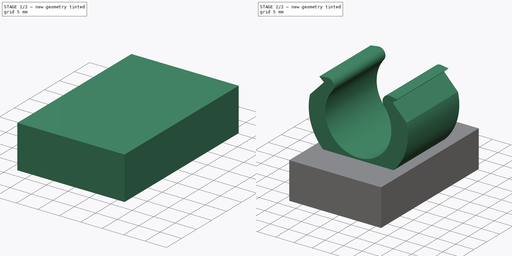
[diagram: build sequence overview — one tinted view per stage of 2, left to right]
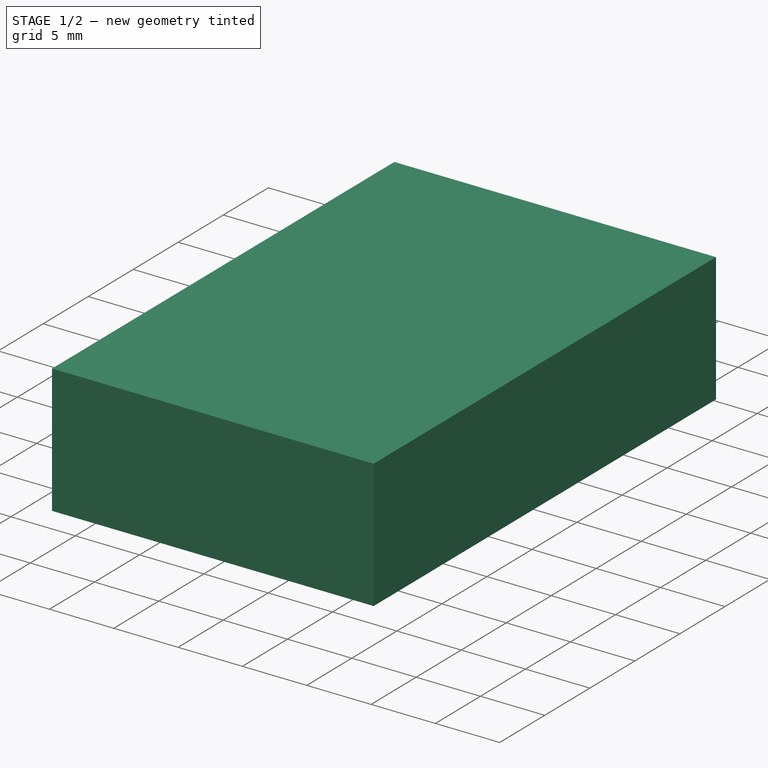
[diagram: stage 1 of 2 — iso view after this stage's code; geometry added in this stage tinted green]
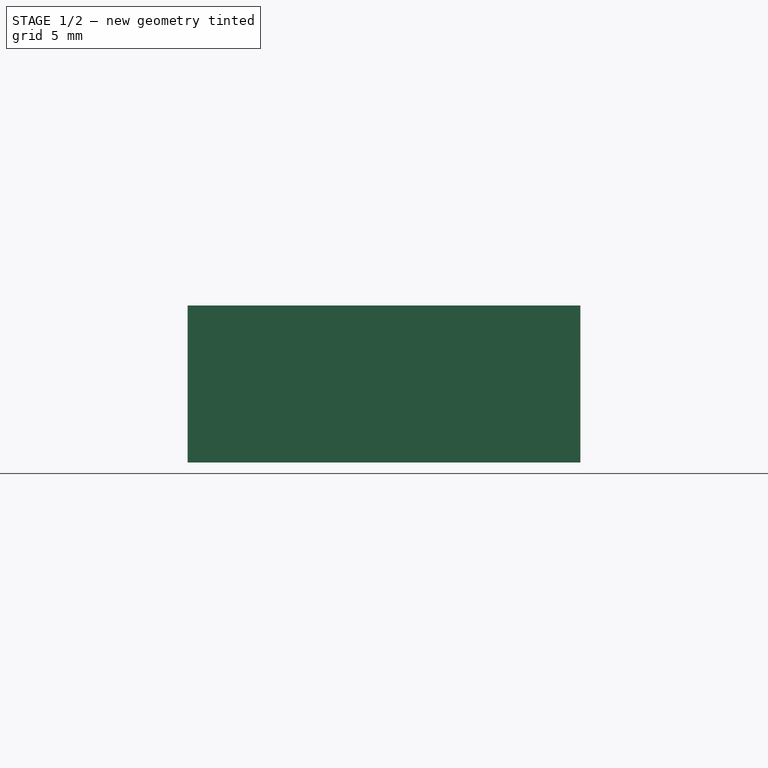
[diagram: stage 1 of 2 — front view after this stage's code; geometry added in this stage tinted green]
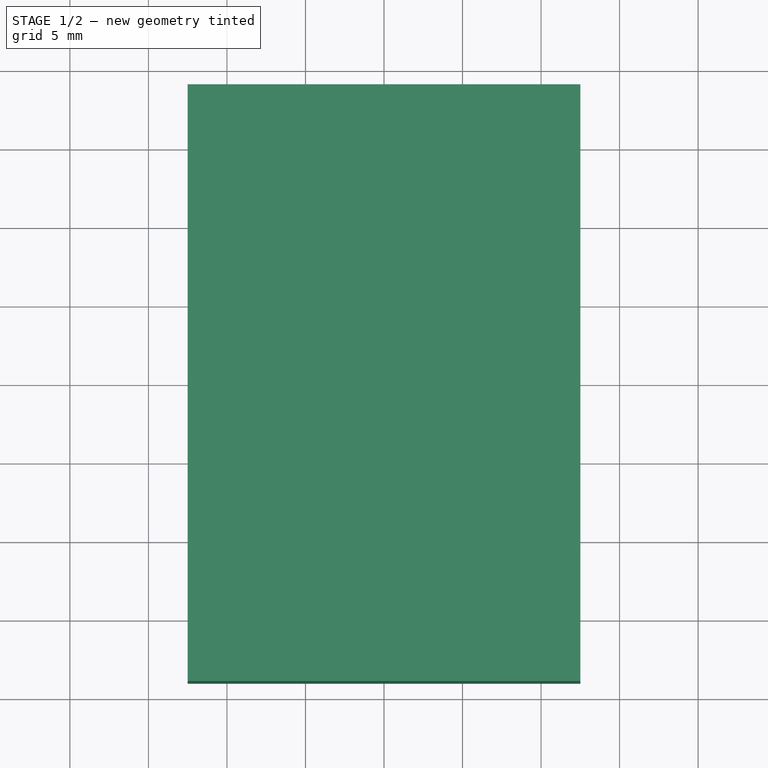
[diagram: stage 1 of 2 — top view after this stage's code; geometry added in this stage tinted green]
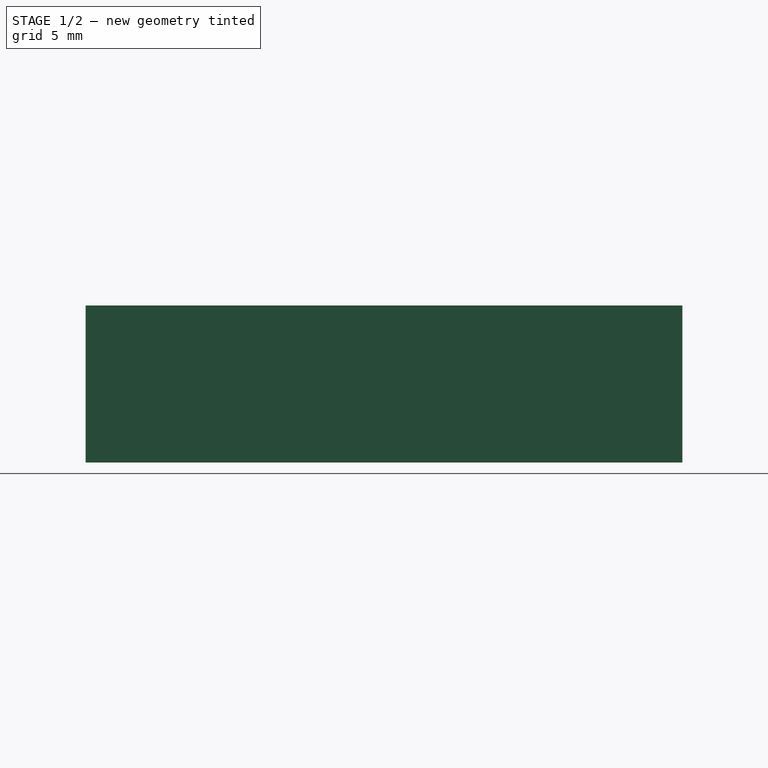
[diagram: stage 1 of 2 — right view after this stage's code; geometry added in this stage tinted green]
FCSTD DOCUMENT  (FreeCAD 1.0R39109 (Git))
Label: Alweco_GreenHouse_Shade_Hook
License: All rights reserved
objects: Sketcher::SketchObject×3, PartDesign::Pad×2, PartDesign::Pocket×1, PartDesign::Chamfer×1, PartDesign::Body×1
note: 19 computed .brp shape members not serialized (recipe doc carries the construction recipe); baked Part::Feature solids carry a one-line shape summary decoded from their .brp
EXTERNAL_REF file=Alweco_GreenHouse_Shade_Base.FCStd obj=Pad001
EXTERNAL_REF file=Alweco_GreenHouse_Shade_Base.FCStd obj=Sketch002
EXTERNAL_REF file=Alweco_GreenHouse_Shade_Base.FCStd obj=Sketch003

FEATURE [Sketcher::SketchObject] Sketch
  ArcFitTolerance = 1e-06
  AttachmentSupport = -> [XY_Plane]
  FullyConstrained = true
  MakeInternals = false
  MapMode = 5
  expr: Constraints[8] = <<Alweco_GreenHouse_Shade_Base>>#Pad001.Length
  expr: Constraints[9] = <<Alweco_GreenHouse_Shade_Base>>#<<Sketch002>>.Constraints.FullWidth
  sketch-geometry (4):
    g0: LineSegment StartX=-12.5 StartY=19 StartZ=0 EndX=-12.5 EndY=-19 EndZ=0
    g1: LineSegment StartX=-12.5 StartY=-19 StartZ=0 EndX=12.5 EndY=-19 EndZ=0
    g2: LineSegment StartX=12.5 StartY=-19 StartZ=0 EndX=12.5 EndY=19 EndZ=0
    g3: LineSegment StartX=12.5 StartY=19 StartZ=0 EndX=-12.5 EndY=19 EndZ=0
  constraints (10):
    c: Coincident(g0,g1)
    c: Coincident(g1,g2)
    c: Coincident(g2,g3)
    c: Coincident(g3,g0)
    c: Vertical(g0)
    c: Horizontal(g1)
    c: Symmetric(g2,g1,g-1)
    c: Symmetric(g0,g2,g-2)
    c: DistanceX(g3,g3) = 25
    c: DistanceY(g2,g2) = 38
FEATURE [PartDesign::Pad] Pad
  Direction = (0,0,1)
  Length = 10
  Length2 = 10
  Profile = -> Sketch
  ReferenceAxis = -> Sketch [N_Axis]
  Refine = true
  Suppressed = false
  Type = 0
FEATURE [Sketcher::SketchObject] Sketch001
  ArcFitTolerance = 1e-06
  AttachmentSupport = -> [Pad]
  FullyConstrained = true
  MakeInternals = false
  MapMode = 5
  Placement = pos=(0,0,0) rot=(1,0,0;3.14159rad)
  expr: Constraints[4] = <<Alweco_GreenHouse_Shade_Base>>#<<Sketch003>>.Constraints.HoleSperation
  sketch-geometry (2):
    g0: Circle CenterX=0 CenterY=13.5 CenterZ=0 NormalX=0 NormalY=0 NormalZ=1 AngleXU=0 Radius=4.1
    g1: Circle CenterX=0 CenterY=-13.5 CenterZ=0 NormalX=0 NormalY=0 NormalZ=1 AngleXU=0 Radius=4.1
  constraints (5):
    c: PointOnObject(g0,g-2)
    c: Equal(g0,g1)
    c: Diameter(g0) = 8.2
    c: Symmetric(g1,g0,g-1)
    c: DistanceY(g1,g0) = 27
FEATURE [PartDesign::Pocket] Pocket
  BaseFeature = -> Pad
  Direction = (0,0,1)
  Length = 8
  Length2 = 5
  Profile = -> Sketch001
  ReferenceAxis = -> Sketch001 [N_Axis]
  Refine = true
  Suppressed = false
  Type = 0
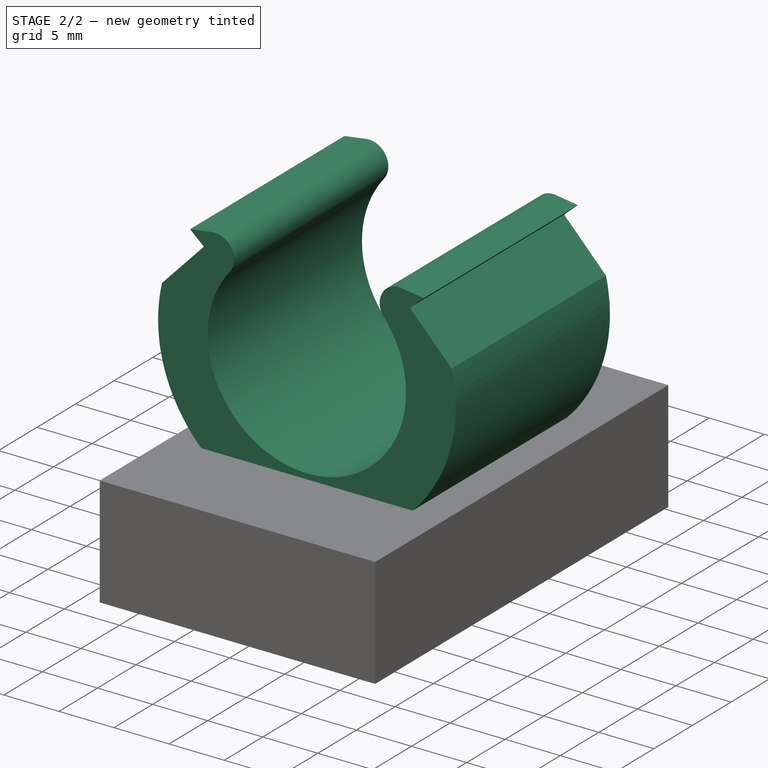
[diagram: stage 2 of 2 — iso view after this stage's code; geometry added in this stage tinted green]
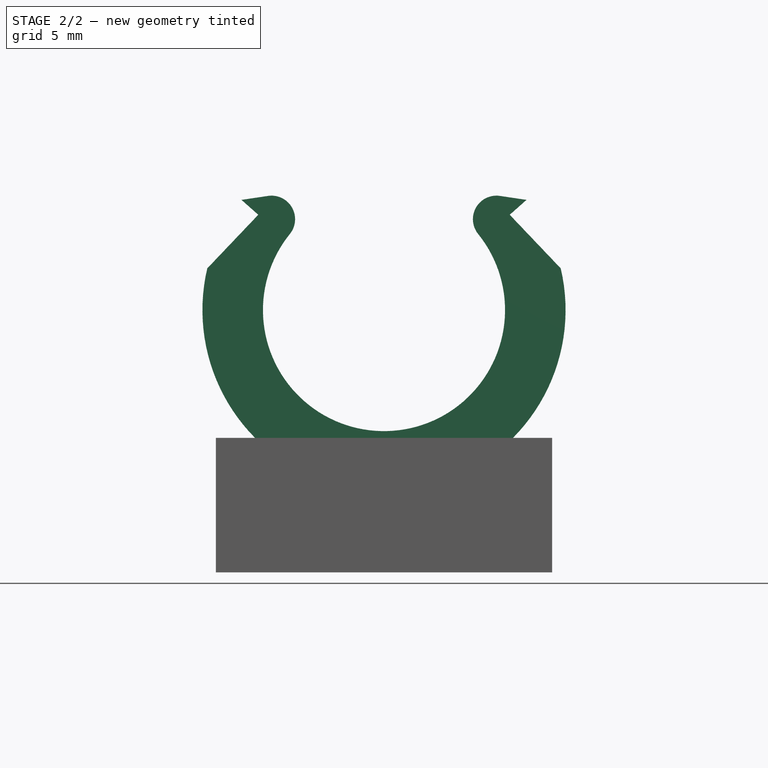
[diagram: stage 2 of 2 — front view after this stage's code; geometry added in this stage tinted green]
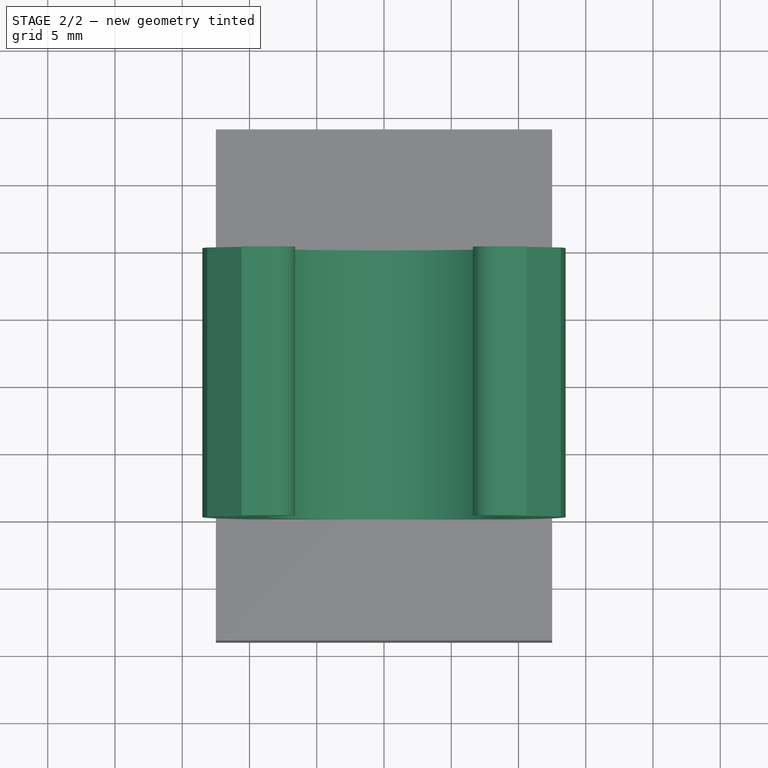
[diagram: stage 2 of 2 — top view after this stage's code; geometry added in this stage tinted green]
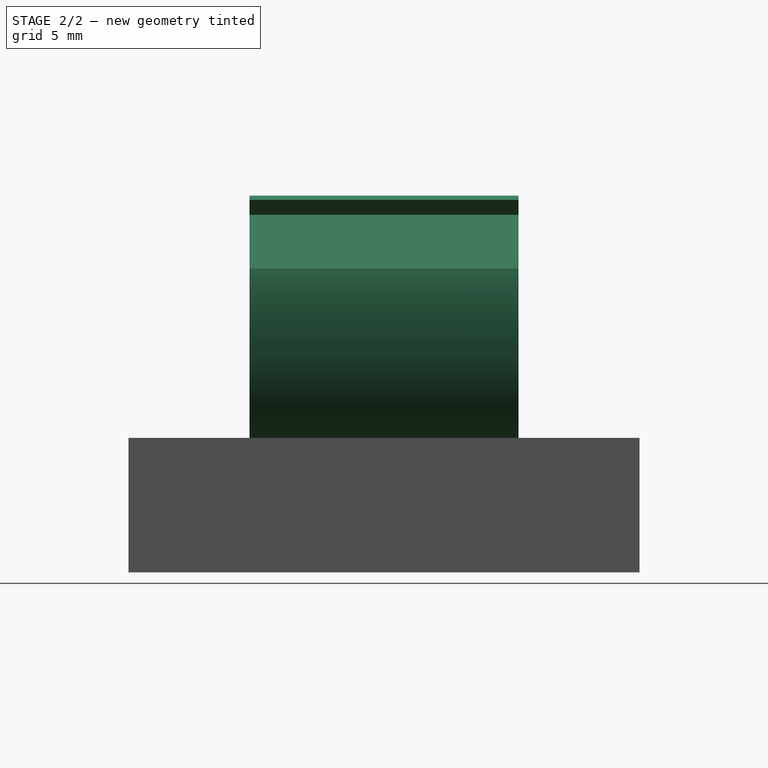
[diagram: stage 2 of 2 — right view after this stage's code; geometry added in this stage tinted green]
FEATURE [PartDesign::Chamfer] Chamfer
  Angle = 45
  Base = -> Pocket [Face10,Face9]
  BaseFeature = -> Pocket
  ChamferType = 0
  FlipDirection = false
  Refine = true
  Size = 3.3
  Size2 = 1
  SupportTransform = false
  Suppressed = false
  UseAllEdges = false
FEATURE [Sketcher::SketchObject] Sketch003
  ArcFitTolerance = 1e-06
  AttachmentSupport = -> [XZ_Plane]
  FullyConstrained = false
  MakeInternals = false
  MapMode = 5
  Placement = pos=(0,0,0) rot=(1,0,0;1.5708rad)
  sketch-geometry (13):
    g0: ArcOfCircle CenterX=2e-16 CenterY=19.5 CenterZ=0 NormalX=0 NormalY=0 NormalZ=1 AngleXU=0 Radius=9 StartAngle=2.46192 EndAngle=6.96286
    g1: ArcOfCircle CenterX=-8.36111 CenterY=26.2568 CenterZ=0 NormalX=0 NormalY=0 NormalZ=1 AngleXU=0 Radius=1.75 StartAngle=5.60351 EndAngle=8.00207
    g2: ArcOfCircle CenterX=8.36111 CenterY=26.2568 CenterZ=0 NormalX=0 NormalY=0 NormalZ=1 AngleXU=0 Radius=1.75 StartAngle=1.42271 EndAngle=3.82127
    g3: LineSegment StartX=-8.61932 StartY=27.9876 StartZ=0 EndX=-10.5974 EndY=27.6926 EndZ=0
    g4: LineSegment StartX=8.61932 StartY=27.9876 StartZ=0 EndX=10.5974 EndY=27.6926 EndZ=0
    g5: LineSegment StartX=-10.5974 StartY=27.6926 StartZ=0 EndX=-9.34743 EndY=26.5861 EndZ=0
    g6: LineSegment StartX=-9.34743 StartY=26.5861 StartZ=0 EndX=-13.1389 EndY=22.6017 EndZ=0
    g7: LineSegment StartX=10.5974 StartY=27.6926 StartZ=0 EndX=9.34743 EndY=26.5861 EndZ=0
    g8: LineSegment StartX=9.34743 StartY=26.5861 StartZ=0 EndX=13.1389 EndY=22.6017 EndZ=0
    g9: ArcOfCircle CenterX=2e-16 CenterY=19.5 CenterZ=0 NormalX=0 NormalY=0 NormalZ=1 AngleXU=0 Radius=13.5 StartAngle=2.90977 EndAngle=4.25183
    g10: ArcOfCircle CenterX=2e-16 CenterY=19.5 CenterZ=0 NormalX=0 NormalY=0 NormalZ=1 AngleXU=0 Radius=13.5 StartAngle=5.17294 EndAngle=6.51501
    g11: LineSegment StartX=-6 StartY=7.40661 StartZ=0 EndX=6 EndY=7.40661 EndZ=0
    g12: LineSegment [constr] StartX=-5.9647 StartY=12.7604 StartZ=0 EndX=-8.94706 EndY=9.39059 EndZ=0
  constraints (33):
    c: Radius(g0) = 9  'IR'
    c: Symmetric(g0,g0,g-2)
    c: Coincident(g5,g3)
    c: Coincident(g6,g5)
    c: Tangent(g3,g1) = -1.5708
    c: Angle(g5,g3) = 0.872665
    c: Distance(g6,g6) = 5.5
    c: DistanceX(g5,g5) = 1.25
    c: Symmetric(g3,g4,g-2)
    c: Coincident(g7,g4)
    c: Coincident(g8,g7)
    c: Symmetric(g7,g5,g-2)
    c: Distance(g3,g3) = 2
    c: DistanceY(g-1,g0) = 19.5
    c: Coincident(g9,g0)
    c: Coincident(g9,g6)
    c: Coincident(g10,g0)
    c: Coincident(g10,g8)
    c: Coincident(g11,g9)
    c: Coincident(g11,g10)
    c: Symmetric(g10,g9,g-2)
    c: Equal(g8,g6)
    c: PointOnObject(g12,g0)
    c: PointOnObject(g12,g9)
    c: Perpendicular(g0,g12)
    c: Distance(g12,g12) = 4.5
    c: DistanceX(g0,g0) = 14
    c: DistanceX(g11,g11) = 12
    c: Tangent(g1,g0) = 1.5708
    c: Tangent(g2,g0) = 1.5708
    c: Angle(g4,g7) = 0.872665
    c: Tangent(g4,g2) = 1.5708
    c: Radius(g1) = 1.75
FEATURE [PartDesign::Pad] Pad001
  BaseFeature = -> Chamfer
  Direction = (0,-1,2e-16)
  Length = 20
  Length2 = 10
  Midplane = true
  Profile = -> Sketch003
  ReferenceAxis = -> Sketch003 [N_Axis]
  Refine = true
  Suppressed = false
  Type = 0
FEATURE [PartDesign::Body] Body  label="Alweco_GreenHouse_Shade_Hook"
  AllowCompound = false
  Group = -> [Sketch,Pad,Sketch001,Pocket,Chamfer,Sketch003,Pad001]
  Origin = -> Origin
  Tip = -> Pad001
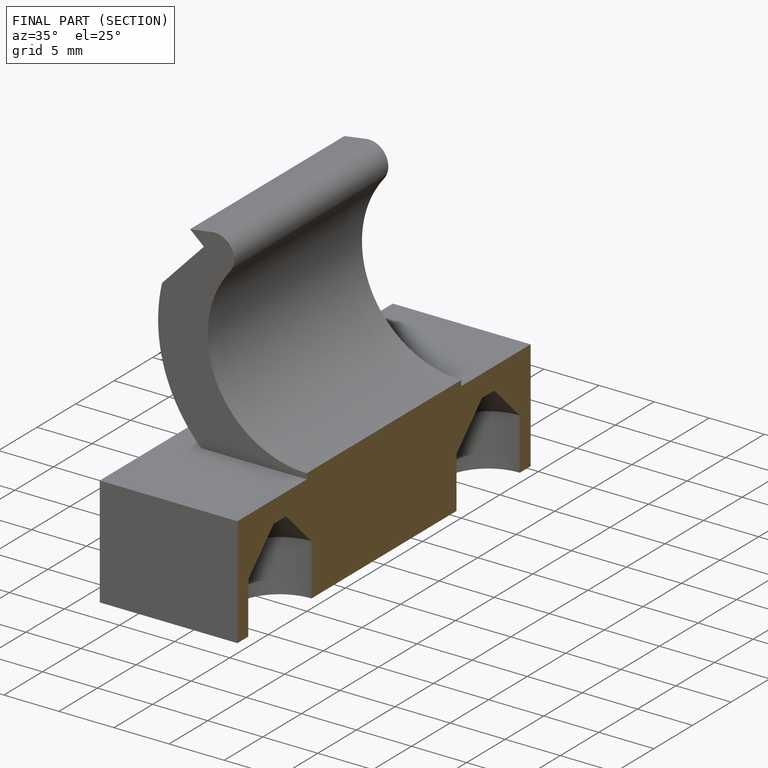
[diagram: finished part — half-section view (interior)]
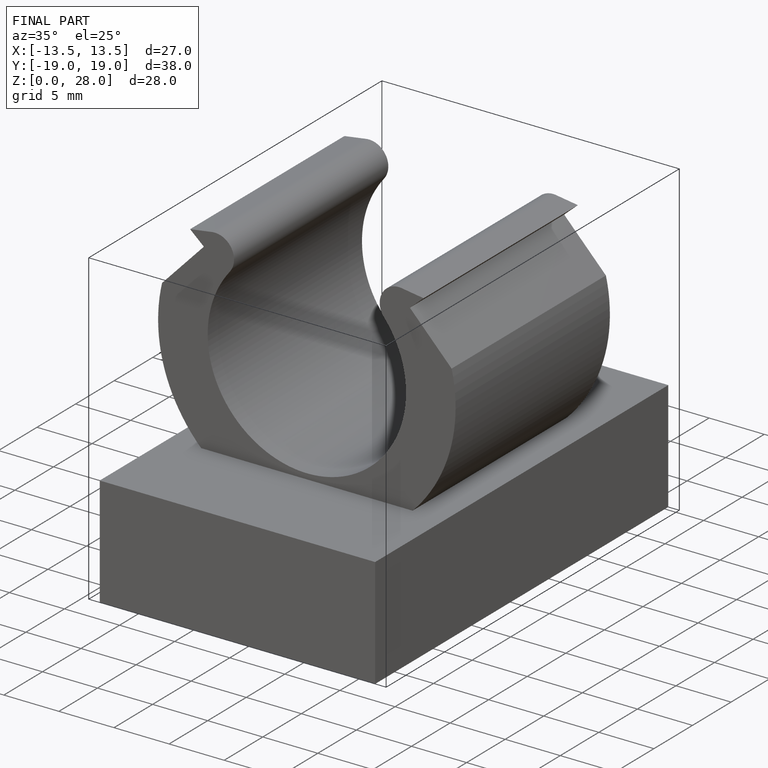
[diagram: finished part — iso view with bounding-box wireframe]
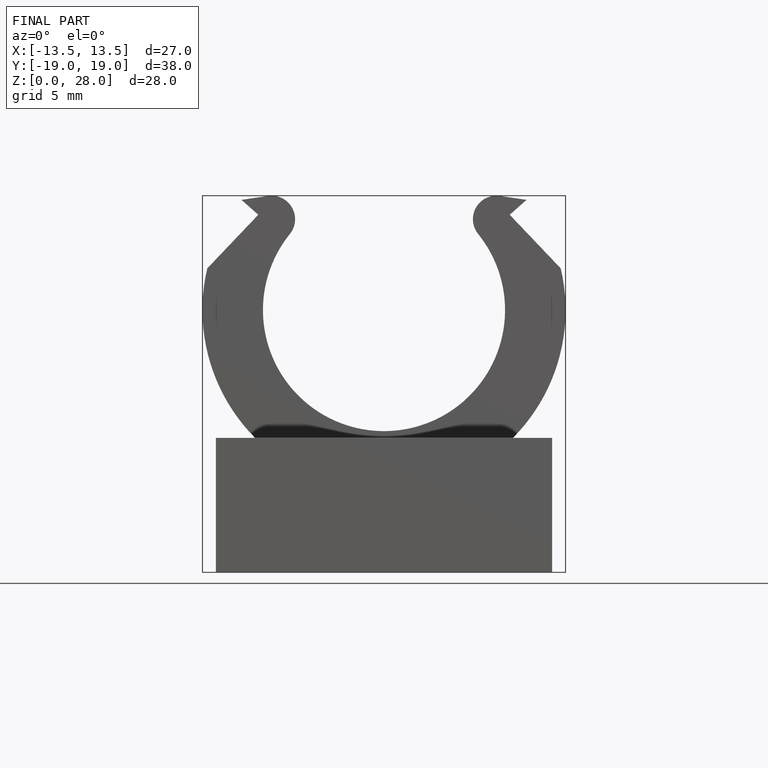
[diagram: finished part — front view with bounding-box wireframe]
